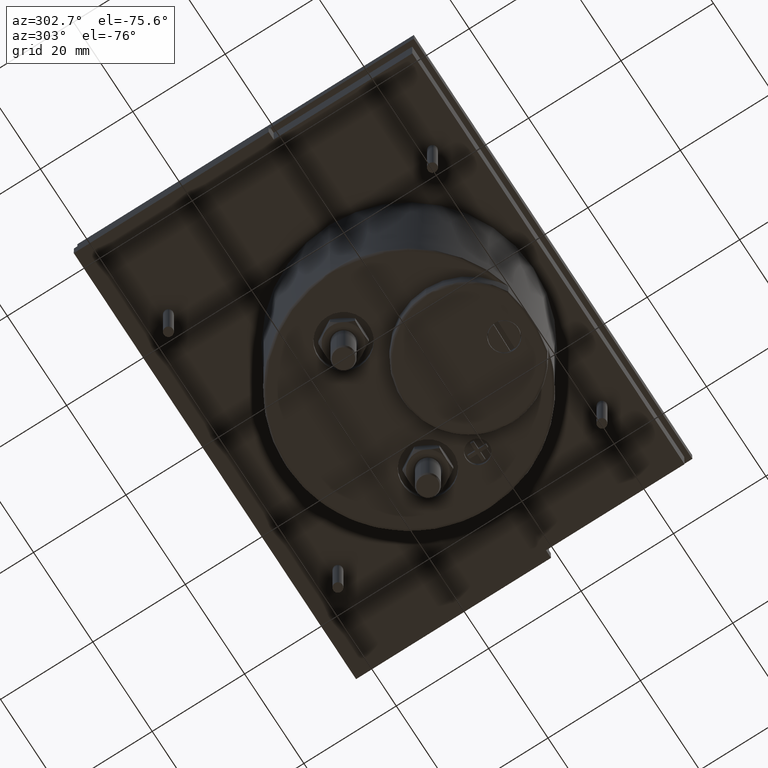
[diagram: clean part render]
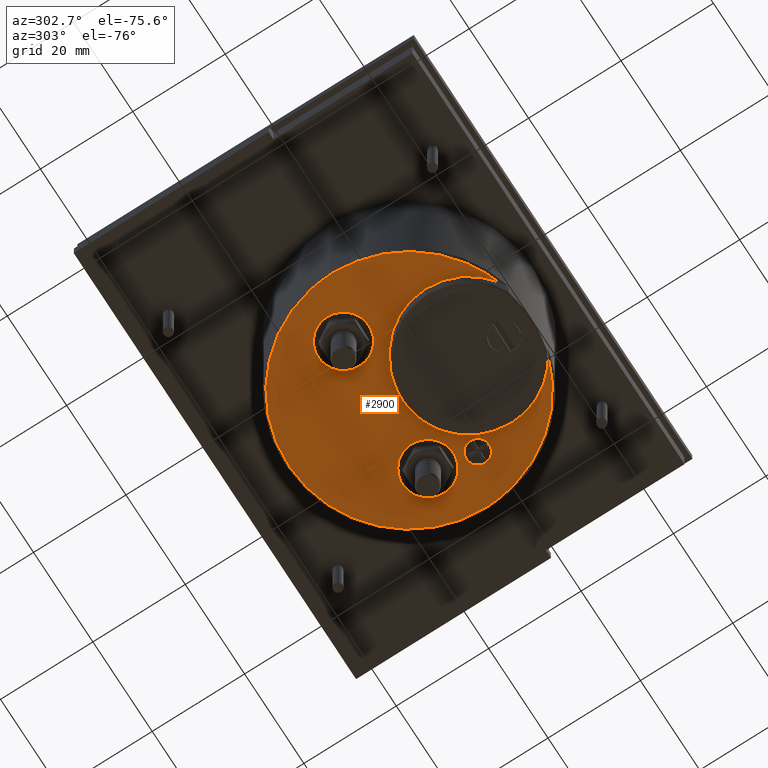
[diagram: same view with one face highlighted and labeled with its STEP entity id]
A machine part, auxiliary view. The second image highlights one B-rep face of the part: STEP entity #2900.
In plain terms, the highlighted planar face has unit normal (0, 0, 1).
Its self-contained STEP definition (entity closure, byte-faithful):
#20 = CARTESIAN_POINT ( 'NONE',  ( 0.5708661417322835607, -0.1929133858267716994, -1.131889763779652114 ) ) ;
#24 = DIRECTION ( 'NONE',  ( 1.000000000000000000, 0.000000000000000000, 0.000000000000000000 ) ) ;
#31 = ORIENTED_EDGE ( 'NONE', *, *, #3312, .F. ) ;
#37 = ORIENTED_EDGE ( 'NONE', *, *, #3100, .F. ) ;
#39 = CARTESIAN_POINT ( 'NONE',  ( 0.2274015748031491257, 0.5150293017077637314, -1.131889763779527547 ) ) ;
#72 = DIRECTION ( 'NONE',  ( 1.000000000000000000, 0.000000000000000000, 0.000000000000000000 ) ) ;
#93 = FACE_BOUND ( 'NONE', #475, .T. ) ;
#256 = CARTESIAN_POINT ( 'NONE',  ( 0.8991353266383411702, -0.6592726747793526965, -1.131889763779568847 ) ) ;
#259 = CARTESIAN_POINT ( 'NONE',  ( 0.5708661417322835607, -0.1929133858267716994, -1.131889763779652114 ) ) ;
#265 = VERTEX_POINT ( 'NONE', #4855 ) ;
#287 = DIRECTION ( 'NONE',  ( -0.000000000000000000, -0.000000000000000000, -1.000000000000000000 ) ) ;
#341 = VERTEX_POINT ( 'NONE', #3386 ) ;
#354 = CARTESIAN_POINT ( 'NONE',  ( -0.2056692913385831378, 0.5150293017077637314, -1.131889763779527547 ) ) ;
#361 =( BOUNDED_CURVE ( )  B_SPLINE_CURVE ( 3, ( #4979, #4567, #1396, #3767 ),
 .UNSPECIFIED., .F., .T. ) 
 B_SPLINE_CURVE_WITH_KNOTS ( ( 4, 4 ),
 ( 0.000000000000000000, 0.2211548839841271930 ),
 .UNSPECIFIED. ) 
 CURVE ( )  GEOMETRIC_REPRESENTATION_ITEM ( )  RATIONAL_B_SPLINE_CURVE ( ( 1.000000000000000000, 0.8747905432567383288, 0.8747905432567383288, 1.000000000000000000 ) ) 
 REPRESENTATION_ITEM ( '' )  );
#409 = ORIENTED_EDGE ( 'NONE', *, *, #5076, .F. ) ;
#410 = DIRECTION ( 'NONE',  ( 1.000000000000000000, 0.000000000000000000, 0.000000000000000000 ) ) ;
#413 = DIRECTION ( 'NONE',  ( 1.000000000000000000, 0.000000000000000000, 0.000000000000000000 ) ) ;
#460 = CARTESIAN_POINT ( 'NONE',  ( 0.5708661417322835607, 0.06105795794049685699, -1.131889763779527547 ) ) ;
#475 = EDGE_LOOP ( 'NONE', ( #3139, #31 ) ) ;
#502 = VERTEX_POINT ( 'NONE', #738 ) ;
#586 = VERTEX_POINT ( 'NONE', #2460 ) ;
#588 = CARTESIAN_POINT ( 'NONE',  ( 1.121023622047244261, 0.1469190654872929436, -1.131889763779527547 ) ) ;
#683 = CIRCLE ( 'NONE', #4180, 0.2165354330708661457 ) ;
#738 = CARTESIAN_POINT ( 'NONE',  ( -0.4572510576041677322, 0.3150293017079486835, -1.131889763779527547 ) ) ;
#899 =( BOUNDED_CURVE ( )  B_SPLINE_CURVE ( 3, ( #1160, #2750, #4327, #945 ),
 .UNSPECIFIED., .F., .T. ) 
 B_SPLINE_CURVE_WITH_KNOTS ( ( 4, 4 ),
 ( 0.7788451160153887498, 1.000000000000000000 ),
 .UNSPECIFIED. ) 
 CURVE ( )  GEOMETRIC_REPRESENTATION_ITEM ( )  RATIONAL_B_SPLINE_CURVE ( ( 1.000000000000000000, 0.8747905432562080863, 0.8747905432562080863, 1.000000000000000000 ) ) 
 REPRESENTATION_ITEM ( '' )  );
#918 = CARTESIAN_POINT ( 'NONE',  ( 1.347401574803149593, 0.5150293017077637314, -1.131889763779527547 ) ) ;
#945 = CARTESIAN_POINT ( 'NONE',  ( 0.2425969568262258957, -0.6592726747793525854, -1.131889763779568847 ) ) ;
#962 = ORIENTED_EDGE ( 'NONE', *, *, #4576, .F. ) ;
#990 = EDGE_CURVE ( 'NONE', #1077, #1964, #2385, .T. ) ;
#1077 = VERTEX_POINT ( 'NONE', #1984 ) ;
#1087 = ORIENTED_EDGE ( 'NONE', *, *, #2010, .F. ) ;
#1126 = CARTESIAN_POINT ( 'NONE',  ( -0.4572510576041677322, 0.3150293017079486835, -1.131889763779527547 ) ) ;
#1130 = DIRECTION ( 'NONE',  ( -0.000000000000000000, -0.000000000000000000, -1.000000000000000000 ) ) ;
#1152 = VERTEX_POINT ( 'NONE', #588 ) ;
#1160 = CARTESIAN_POINT ( 'NONE',  ( -0.4572510576041677322, 0.3150293017079486835, -1.131889763779527547 ) ) ;
#1176 = EDGE_CURVE ( 'NONE', #586, #3455, #4636, .T. ) ;
#1271 = CIRCLE ( 'NONE', #3360, 0.09842519685039378963 ) ;
#1299 = ORIENTED_EDGE ( 'NONE', *, *, #3445, .F. ) ;
#1316 = AXIS2_PLACEMENT_3D ( 'NONE', #3858, #1875, #4654 ) ;
#1396 = CARTESIAN_POINT ( 'NONE',  ( 1.598983352527738377, -0.1420724116875834997, -1.131889763779527547 ) ) ;
#1416 = CARTESIAN_POINT ( 'NONE',  ( 1.598983416299602389, 0.3150293017023418907, -1.131889763779527547 ) ) ;
#1482 = CARTESIAN_POINT ( 'NONE',  ( 1.219448818897637787, 0.1469190654872929158, -1.131889763779527547 ) ) ;
#1543 = CARTESIAN_POINT ( 'NONE',  ( 1.219448818897637787, 0.1469190654872929158, -1.131889763779527547 ) ) ;
#1629 =( BOUNDED_CURVE ( )  B_SPLINE_CURVE ( 3, ( #5070, #4709, #2338, #1126 ),
 .UNSPECIFIED., .F., .T. ) 
 B_SPLINE_CURVE_WITH_KNOTS ( ( 4, 4 ),
 ( 0.2211548839841271930, 0.7788451160153887498 ),
 .UNSPECIFIED. ) 
 CURVE ( )  GEOMETRIC_REPRESENTATION_ITEM ( )  RATIONAL_B_SPLINE_CURVE ( ( 1.000000000000000000, 0.3333333333324836611, 0.3333333333324836611, 1.000000000000000000 ) ) 
 REPRESENTATION_ITEM ( '' )  );
#1673 = CARTESIAN_POINT ( 'NONE',  ( 0.01086614173228299222, 0.5150293017077637314, -1.131889763779527547 ) ) ;
#1856 = AXIS2_PLACEMENT_3D ( 'NONE', #460, #2505, #2058 ) ;
#1875 = DIRECTION ( 'NONE',  ( -0.000000000000000000, -0.000000000000000000, -1.000000000000000000 ) ) ;
#1905 = EDGE_CURVE ( 'NONE', #1964, #3674, #3450, .T. ) ;
#1918 = DIRECTION ( 'NONE',  ( -0.000000000000000000, -0.000000000000000000, -1.000000000000000000 ) ) ;
#1964 = VERTEX_POINT ( 'NONE', #3113 ) ;
#1984 = CARTESIAN_POINT ( 'NONE',  ( 0.0005577653585960007637, -0.1929133858267716162, -1.131889763779652114 ) ) ;
#1985 = DIRECTION ( 'NONE',  ( 1.000000000000000000, 1.796296600337577880E-15, 0.000000000000000000 ) ) ;
#2010 = EDGE_CURVE ( 'NONE', #265, #1077, #2196, .T. ) ;
#2020 = CIRCLE ( 'NONE', #4928, 0.2165354330708661457 ) ;
#2058 = DIRECTION ( 'NONE',  ( 1.000000000000000000, 0.000000000000000000, -0.000000000000000000 ) ) ;
#2196 = CIRCLE ( 'NONE', #2275, 0.5703083763736874756 ) ;
#2275 = AXIS2_PLACEMENT_3D ( 'NONE', #5130, #3159, #1985 ) ;
#2338 = CARTESIAN_POINT ( 'NONE',  ( -0.4572510690641941600, 2.371263723306419990, -1.131889763779527991 ) ) ;
#2385 = CIRCLE ( 'NONE', #3478, 0.5703083763736874756 ) ;
#2460 = CARTESIAN_POINT ( 'NONE',  ( 0.9143307086614174128, 0.5150293017077637314, -1.131889763779527547 ) ) ;
#2505 = DIRECTION ( 'NONE',  ( 0.000000000000000000, 0.000000000000000000, 1.000000000000000000 ) ) ;
#2525 = AXIS2_PLACEMENT_3D ( 'NONE', #3132, #1130, #3913 ) ;
#2541 = VERTEX_POINT ( 'NONE', #39 ) ;
#2688 = CIRCLE ( 'NONE', #3356, 0.09842519685039378963 ) ;
#2750 = CARTESIAN_POINT ( 'NONE',  ( -0.4572510690644177034, -0.1420724116859245767, -1.131889763779527769 ) ) ;
#2824 = CARTESIAN_POINT ( 'NONE',  ( 0.01086614173228299222, 0.5150293017077637314, -1.131889763779527547 ) ) ;
#2900 = ADVANCED_FACE ( 'NONE', ( #4421, #4865, #3735, #93 ), #4037, .F. ) ;
#2938 = ORIENTED_EDGE ( 'NONE', *, *, #4792, .F. ) ;
#3075 = VERTEX_POINT ( 'NONE', #354 ) ;
#3100 = EDGE_CURVE ( 'NONE', #4939, #502, #1629, .T. ) ;
#3113 = CARTESIAN_POINT ( 'NONE',  ( 1.141174518105971147, -0.1929133858267716994, -1.131889763779652114 ) ) ;
#3132 = CARTESIAN_POINT ( 'NONE',  ( 1.130866141732283392, 0.5150293017077637314, -1.131889763779527547 ) ) ;
#3139 = ORIENTED_EDGE ( 'NONE', *, *, #5133, .F. ) ;
#3159 = DIRECTION ( 'NONE',  ( 0.000000000000000000, -0.000000000000000000, -1.000000000000000000 ) ) ;
#3273 = EDGE_CURVE ( 'NONE', #3075, #2541, #683, .T. ) ;
#3312 = EDGE_CURVE ( 'NONE', #1152, #341, #2688, .T. ) ;
#3336 = EDGE_LOOP ( 'NONE', ( #962, #4923, #4931, #1087, #2938, #37 ) ) ;
#3356 = AXIS2_PLACEMENT_3D ( 'NONE', #1482, #3852, #24 ) ;
#3360 = AXIS2_PLACEMENT_3D ( 'NONE', #1543, #287, #3526 ) ;
#3386 = CARTESIAN_POINT ( 'NONE',  ( 1.317874015748031757, 0.1469190654872929158, -1.131889763779527547 ) ) ;
#3445 = EDGE_CURVE ( 'NONE', #2541, #3075, #2020, .T. ) ;
#3450 = CIRCLE ( 'NONE', #4101, 0.5703083763736874756 ) ;
#3455 = VERTEX_POINT ( 'NONE', #918 ) ;
#3478 = AXIS2_PLACEMENT_3D ( 'NONE', #20, #4426, #410 ) ;
#3526 = DIRECTION ( 'NONE',  ( 1.000000000000000000, 0.000000000000000000, 0.000000000000000000 ) ) ;
#3571 = ORIENTED_EDGE ( 'NONE', *, *, #3273, .F. ) ;
#3674 = VERTEX_POINT ( 'NONE', #256 ) ;
#3735 = FACE_BOUND ( 'NONE', #4254, .T. ) ;
#3767 = CARTESIAN_POINT ( 'NONE',  ( 1.598983416299602389, 0.3150293017023418907, -1.131889763779527547 ) ) ;
#3796 = DIRECTION ( 'NONE',  ( 1.000000000000000000, 0.000000000000000000, 0.000000000000000000 ) ) ;
#3852 = DIRECTION ( 'NONE',  ( -0.000000000000000000, -0.000000000000000000, -1.000000000000000000 ) ) ;
#3858 = CARTESIAN_POINT ( 'NONE',  ( 1.130866141732283392, 0.5150293017077637314, -1.131889763779527547 ) ) ;
#3913 = DIRECTION ( 'NONE',  ( 1.000000000000000000, 0.000000000000000000, 0.000000000000000000 ) ) ;
#4037 = PLANE ( 'NONE',  #1856 ) ;
#4101 = AXIS2_PLACEMENT_3D ( 'NONE', #259, #4231, #3796 ) ;
#4180 = AXIS2_PLACEMENT_3D ( 'NONE', #2824, #1918, #413 ) ;
#4231 = DIRECTION ( 'NONE',  ( 0.000000000000000000, -0.000000000000000000, -1.000000000000000000 ) ) ;
#4254 = EDGE_LOOP ( 'NONE', ( #1299, #3571 ) ) ;
#4327 = CARTESIAN_POINT ( 'NONE',  ( -0.1905784614371907049, -0.5133239392636920195, -1.131889763779527769 ) ) ;
#4421 = FACE_OUTER_BOUND ( 'NONE', #3336, .T. ) ;
#4426 = DIRECTION ( 'NONE',  ( 0.000000000000000000, -0.000000000000000000, -1.000000000000000000 ) ) ;
#4447 = ORIENTED_EDGE ( 'NONE', *, *, #1176, .F. ) ;
#4485 = DIRECTION ( 'NONE',  ( -0.000000000000000000, -0.000000000000000000, -1.000000000000000000 ) ) ;
#4567 = CARTESIAN_POINT ( 'NONE',  ( 1.332310744900672583, -0.5133239392640577270, -1.131889763779527547 ) ) ;
#4576 = EDGE_CURVE ( 'NONE', #3674, #4939, #361, .T. ) ;
#4636 = CIRCLE ( 'NONE', #1316, 0.2165354330708660624 ) ;
#4654 = DIRECTION ( 'NONE',  ( 1.000000000000000000, 0.000000000000000000, 0.000000000000000000 ) ) ;
#4709 = CARTESIAN_POINT ( 'NONE',  ( 1.598983352534367741, 2.371263723303616011, -1.131889763779527991 ) ) ;
#4745 = EDGE_LOOP ( 'NONE', ( #409, #4447 ) ) ;
#4753 = CIRCLE ( 'NONE', #2525, 0.2165354330708660624 ) ;
#4792 = EDGE_CURVE ( 'NONE', #502, #265, #899, .T. ) ;
#4855 = CARTESIAN_POINT ( 'NONE',  ( 0.2425969568262258957, -0.6592726747793525854, -1.131889763779568847 ) ) ;
#4865 = FACE_BOUND ( 'NONE', #4745, .T. ) ;
#4923 = ORIENTED_EDGE ( 'NONE', *, *, #1905, .F. ) ;
#4928 = AXIS2_PLACEMENT_3D ( 'NONE', #1673, #4485, #72 ) ;
#4931 = ORIENTED_EDGE ( 'NONE', *, *, #990, .F. ) ;
#4939 = VERTEX_POINT ( 'NONE', #1416 ) ;
#4979 = CARTESIAN_POINT ( 'NONE',  ( 0.8991353266383411702, -0.6592726747793526965, -1.131889763779568847 ) ) ;
#5070 = CARTESIAN_POINT ( 'NONE',  ( 1.598983416299602389, 0.3150293017023418907, -1.131889763779527547 ) ) ;
#5076 = EDGE_CURVE ( 'NONE', #3455, #586, #4753, .T. ) ;
#5130 = CARTESIAN_POINT ( 'NONE',  ( 0.5708661417322835607, -0.1929133858267716994, -1.131889763779652114 ) ) ;
#5133 = EDGE_CURVE ( 'NONE', #341, #1152, #1271, .T. ) ;